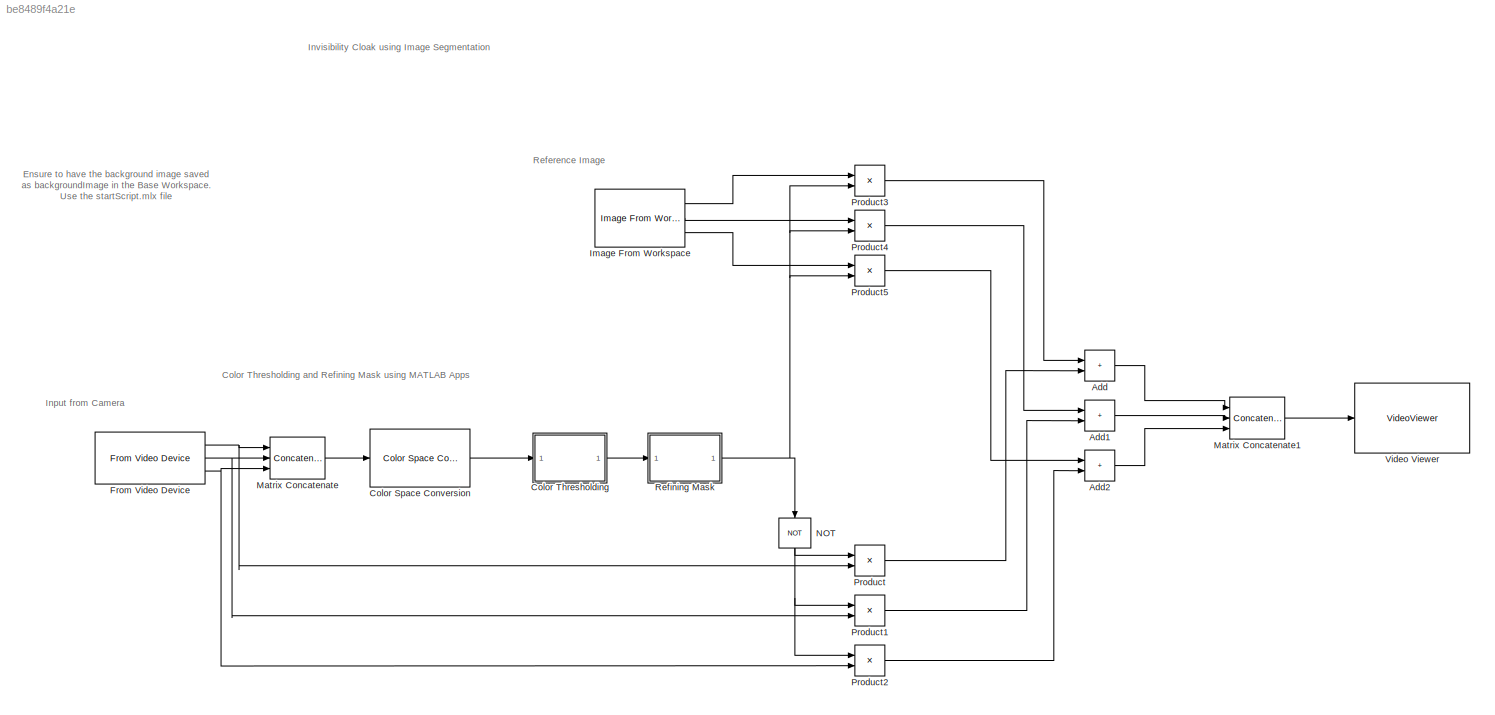
MODEL slx_be8489f4a21e
KIND model
CONFIG AbsTol = auto
CONFIG EnableMultiTasking = off
CONFIG FixedStep = auto
CONFIG MaxStep = auto
CONFIG MinStep = auto
CONFIG RelTol = 1e-3
CONFIG SampleTimeConstraint = Unconstrained
CONFIG SolverName = VariableStepAuto
CONFIG StartTime = 0.0
CONFIG StopTime = 50
BLOCK [Sum] Add
  IconShape = rectangular
  Ports = [2, 1]
BLOCK [Sum] Add1
  IconShape = rectangular
  Ports = [2, 1]
BLOCK [Sum] Add2
  IconShape = rectangular
  Ports = [2, 1]
BLOCK [Reference] Color Space Conversion  REF=visionconversions/Color Space
 Conversion
  Ports = [1, 1]
  SourceBlock = visionconversions/Color Space\n Conversion
  SourceProductBaseCode = VP
  SourceType = Color Space Conversion
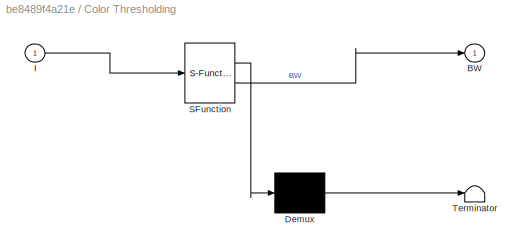
BLOCK [SubSystem] Color Thresholding
  ErrorFcn = Stateflow.Translate.translate
  PermitHierarchicalResolution = ExplicitOnly
  Ports = [1, 1]
  RequestExecContextInheritance = off
  SFBlockType = MATLAB Function
  TreatAsAtomicUnit = on
BLOCK [Demux] Color Thresholding/ Demux 
  Outputs = 1
  Ports = [1, 1]
BLOCK [S-Function] Color Thresholding/ SFunction 
  EnableBusSupport = on
  FunctionName = sf_sfun
  PortCounts = [1 2]
  Ports = [1, 2]
  SFcnIsStateOwnerBlock = off
  SFunctionDeploymentMode = off
  Tag = Stateflow S-Function 2
BLOCK [Terminator] Color Thresholding/ Terminator 
BLOCK [Outport] Color Thresholding/BW
BLOCK [Inport] Color Thresholding/I
BLOCK [Reference] From Video Device  REF=imaqlib/From Video Device
  Ports = [0, 3]
  SourceBlock = imaqlib/From Video Device
  SourceProductBaseCode = IA
  SourceType = From Video Device
  UserDataPersistent = on
BLOCK [Reference] Image From Workspace  REF=visionsources/Image From Workspace
  Ports = [0, 3]
  SourceBlock = visionsources/Image From Workspace
  SourceProductBaseCode = VP
  SourceType = Image From Workspace
  Tag = vipblks_nd
BLOCK [Concatenate] Matrix Concatenate
  ConcatenateDimension = 3
  Mode = Multidimensional array
  NumInputs = 3
  Ports = [3, 1]
BLOCK [Concatenate] Matrix Concatenate1
  ConcatenateDimension = 3
  Mode = Multidimensional array
  NumInputs = 3
  Ports = [3, 1]
BLOCK [Logic] NOT
  AllPortsSameDT = off
  IconShape = distinctive
  NameLocation = left
  Operator = NOT
  OutDataTypeStr = boolean
  Ports = [1, 1]
BLOCK [Product] Product
  Ports = [2, 1]
BLOCK [Product] Product1
  Ports = [2, 1]
BLOCK [Product] Product2
  Ports = [2, 1]
BLOCK [Product] Product3
  Ports = [2, 1]
BLOCK [Product] Product4
  Ports = [2, 1]
BLOCK [Product] Product5
  Ports = [2, 1]
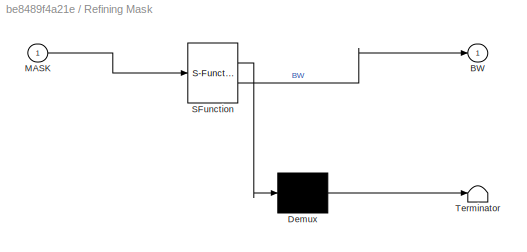
BLOCK [SubSystem] Refining Mask
  ErrorFcn = Stateflow.Translate.translate
  PermitHierarchicalResolution = ExplicitOnly
  Ports = [1, 1]
  RequestExecContextInheritance = off
  SFBlockType = MATLAB Function
  TreatAsAtomicUnit = on
BLOCK [Demux] Refining Mask/ Demux 
  Outputs = 1
  Ports = [1, 1]
BLOCK [S-Function] Refining Mask/ SFunction 
  EnableBusSupport = on
  FunctionName = sf_sfun
  PortCounts = [1 2]
  Ports = [1, 2]
  SFcnIsStateOwnerBlock = off
  SFunctionDeploymentMode = off
  Tag = Stateflow S-Function 1
BLOCK [Terminator] Refining Mask/ Terminator 
BLOCK [Outport] Refining Mask/BW
BLOCK [Inport] Refining Mask/MASK
BLOCK [VideoViewer] Video Viewer
  FigPos = [-1729 1274 1239 681]
  Ports = [1]
  ScopeSpecificationString = vipscopes.VideoViewerScopeCfg('CurrentConfiguration', extmgr.ConfigurationSet(extmgr.Configuration('Core','General UI',true),extmgr.Configuration('Core','Source UI',true),extmgr.Configuration('Sources','WiredSimulink',true),extmgr.Configuration('Visuals','Video',true),extmgr.Configuration('Tools','Image Navigation Tools',true),extmgr.Configuration('Tools','Image Tool',true),extmgr.Configuration('T...<+79ch>
ANNOTATION (root): Invisibility Cloak using Image Segmentation
ANNOTATION (root): Ensure to have the background image saved as backgroundImage in the Base Workspace. Use the startScript .mlx file
ANNOTATION (root): Color Thresholding and Refining Mask using MATLAB Apps
ANNOTATION (root): Input from Camera
ANNOTATION (root): Reference Image
LINE Add1:1 -> Matrix Concatenate1:2
LINE Add2:1 -> Matrix Concatenate1:3
LINE Add:1 -> Matrix Concatenate1:1
LINE Color Space Conversion:1 -> Color Thresholding:1
LINE Color Thresholding:1 -> Refining Mask:1
NET From Video Device:1 -> Matrix Concatenate:1, Product:2
NET From Video Device:2 -> Matrix Concatenate:2, Product1:2
NET From Video Device:3 -> Matrix Concatenate:3, Product2:2
LINE Image From Workspace:1 -> Product3:1
LINE Image From Workspace:2 -> Product4:1
LINE Image From Workspace:3 -> Product5:1
LINE Matrix Concatenate1:1 -> Video Viewer:1
LINE Matrix Concatenate:1 -> Color Space Conversion:1
NET NOT:1 -> Product1:1, Product2:1, Product:1
LINE Product1:1 -> Add1:2
LINE Product2:1 -> Add2:2
LINE Product3:1 -> Add:1
LINE Product4:1 -> Add1:1
LINE Product5:1 -> Add2:1
LINE Product:1 -> Add:2
NET Refining Mask:1 -> NOT:1, Product3:2, Product4:2, Product5:2
note: NET lines group one-source signal fan-out (src -> all destinations, sorted); 1:1 wires keep LINE
CHART Color Thresholding states=1 transitions=1
  STATE_LABEL 'eML_blk_kernel()'
  STATE_LABEL 'SCRIPT:\nfunction BW = fcn(I)\n\nchannel1Min = 0.02;\nchannel1Max = 0.098;\n\n% Define thresholds for channel 2 based on histogram settings\nchannel2Min = 0.662;\nchannel2Max = 1.000;\n\n% Define thresholds for channel 3 based on histogram settings\nchannel3Min = 0.395;\nchannel3Max = 0.851;\n\n\n% Create mask based on chosen histogram thresholds\nsliderBW = (I(:,:,1) >= channel1Min ) & (I(:,:,1) <= channel1Max) ...<+146ch>'
CHART Refining Mask states=1 transitions=1
  STATE_LABEL 'eML_blk_kernel()'
  STATE_LABEL "SCRIPT:\nfunction BW = fcn(MASK)\n\n% Create empty mask.\nBW = false(size(MASK,1),size(MASK,2));\n\n% Load Mask\nBW = MASK;\n\n% Fill holes\nBW = imfill(BW, 'holes');\n\n% Open mask with disk\nradius = 3;\ndecomposition = 0;\nse = strel('disk', radius, decomposition);\nBW = imopen(BW, se);\n\nend\n\n"
CHART  states=0 transitions=0
CHART  states=0 transitions=0
